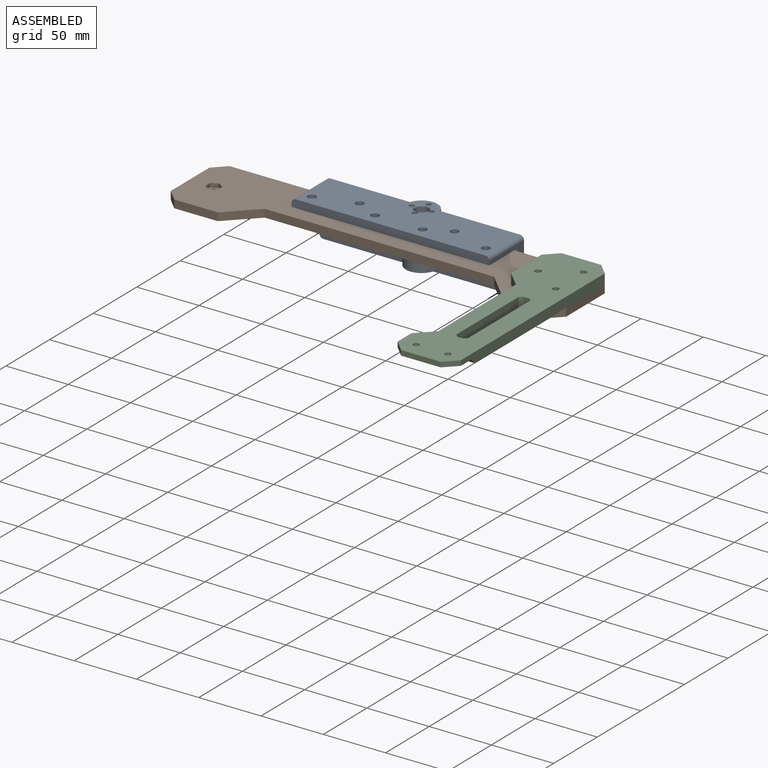
[diagram: assembled view]
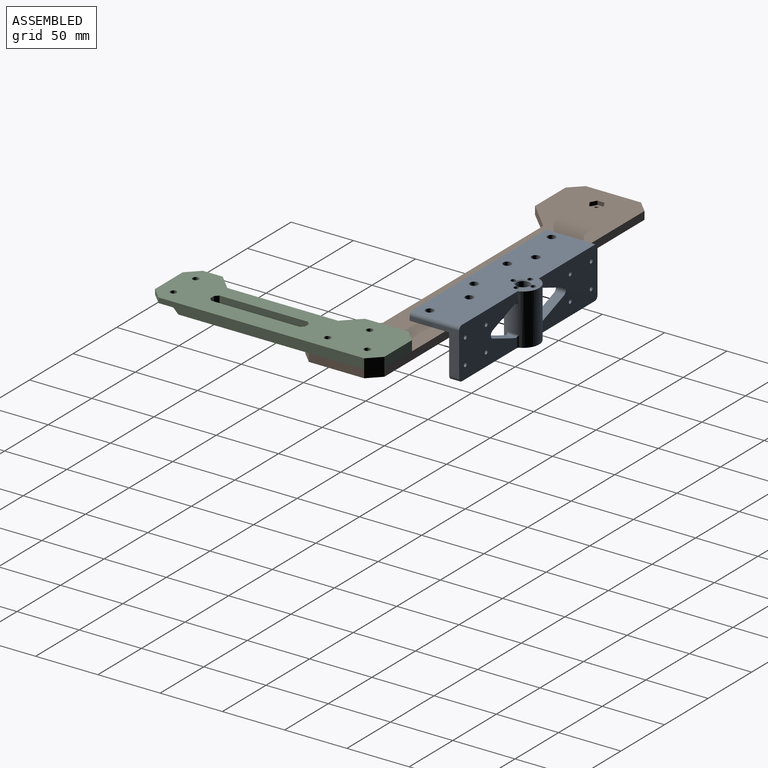
[diagram: assembled view, second angle]
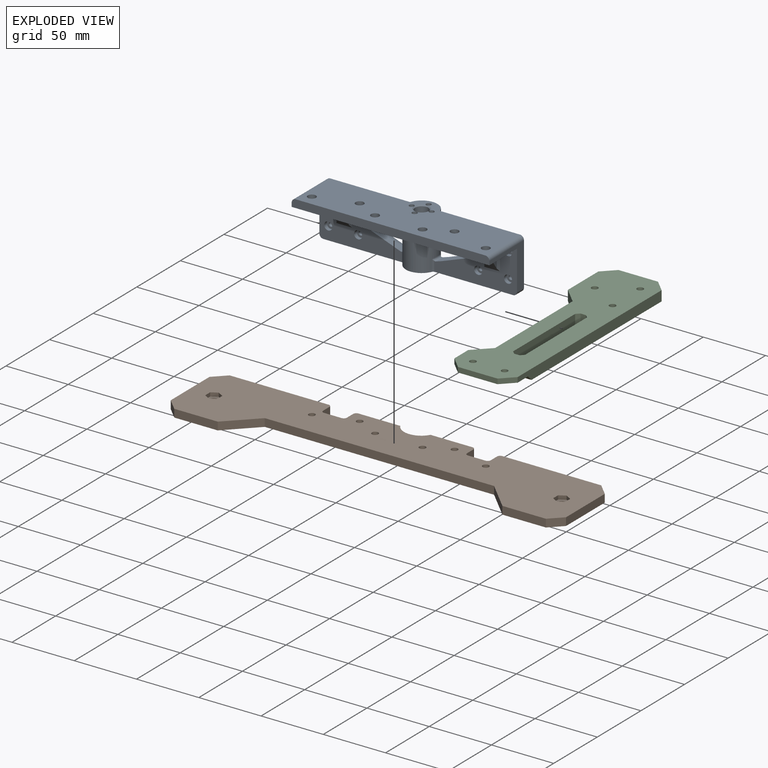
[diagram: exploded view]
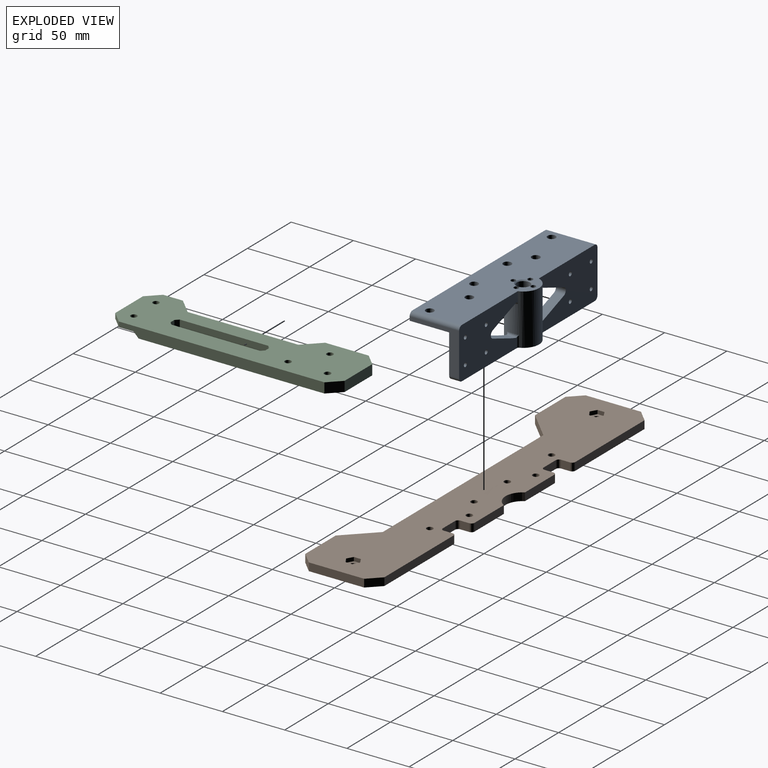
[diagram: exploded view, second angle]
ASSEMBLY  parts=3 mates=5
PART A: 103 faces, bbox 158.9x48.6x41 mm
  f0: plane 152.4x48.42mm, normal (0,0,1), area 5834.2mm2, adj f2,f3,f6,f8,f9,f10,f13,f24
  f1: plane 67.36x34.59mm, normal (0,-1,0), area 1592.5mm2, adj f6,f7,f16,f19,f20,f21,f22,f23
  f2: plane 67.37x40.95mm, normal (0,1,0), area 2219.1mm2, adj f0,f6,f11,f12,f13,f14,f15,f16
  f3: plane 67.36x40.95mm, normal (0,1,0), area 2221.3mm2, adj f0,f6,f16,f19,f20,f21,f22,f23
  f4: plane 66.27x32.06mm, normal (0,-1,0), area 1437.9mm2, adj f11,f12,f14,f15,f16,f17,f35,f38
  f5: cylinder r=5.33mm len=39.31mm, axis (0,0,-1), area 1317.3mm2, adj f93,f94
  f6: cylinder r=12.7mm len=40.89mm, axis (0,0,-1), area 2727.8mm2, adj f0,f1,f2,f3,f7,f16,f88,f95
  f7: plane 158.75x31.75mm, normal (0,0,-1), area 4351mm2, adj f1,f6,f14,f23,f32,f62,f66,f70
  f8: cylinder r=1.99mm len=6.35mm, axis (0,0,1), area 79.5mm2, adj f0,f60,f93
  f9: cylinder r=1.99mm len=6.35mm, axis (0,0,1), area 79.6mm2, adj f0,f61,f93
  f10: cylinder r=1.99mm len=6.35mm, axis (0,0,1), area 79.5mm2, adj f0,f18,f93
  f11: cylinder r=3.17mm len=7.94mm, axis (0,1,0), area 61.3mm2, adj f2,f4,f12,f17
  f12: plane 26.86x10.06mm, normal (0.35,0,-0.94), area 222.5mm2, adj f2,f4,f11,f88,f95
  f13: cylinder r=3.17mm len=39.69mm, axis (0,1,0), area 197.9mm2, adj f0,f2,f14,f32
  f14: plane 39.69x34.54mm, normal (-1,0,0), area 376.4mm2, adj f2,f4,f7,f13,f15,f32,f92
  f15: cylinder r=3.17mm len=7.94mm, axis (0,1,0), area 39.6mm2, adj f2,f4,f14,f16
  f16: plane 152.4x25.4mm, normal (0,0,-1), area 1351.4mm2, adj f1,f2,f3,f4,f6,f15,f22,f27
  f17: plane 26.6x9.87mm, normal (0.35,0,0.94), area 222mm2, adj f2,f4,f11,f98
  f18: plane 3.99x3.99mm, normal (0,0,1), area 12.5mm2, adj f10
  f19: plane 21.69x8.05mm, normal (-0.35,0,-0.94), area 183.7mm2, adj f1,f3,f20,f25
  f20: cylinder r=3.17mm len=7.94mm, axis (0,1,0), area 61.3mm2, adj f1,f3,f19,f21
  f21: plane 21.69x8.05mm, normal (-0.35,0,0.94), area 183.7mm2, adj f1,f3,f20,f31
  f22: cylinder r=3.17mm len=7.94mm, axis (0,1,0), area 39.6mm2, adj f1,f3,f16,f23
  f23: plane 39.69x34.54mm, normal (1,0,0), area 375mm2, adj f1,f3,f7,f22,f24,f32
  f24: cylinder r=3.17mm len=39.69mm, axis (0,1,0), area 197.9mm2, adj f0,f3,f23,f32
  f25: plane 7.94x4.98mm, normal (-0.3,0,-0.95), area 38.3mm2, adj f1,f3,f19,f99
  f26: plane 3.99x3.99mm, normal (0,0,-1), area 12.5mm2, adj f29
  f27: cylinder r=1.99mm len=6.35mm, axis (0,0,-1), area 79.5mm2, adj f16,f57,f94
  f28: cylinder r=1.99mm len=6.35mm, axis (0,0,-1), area 79.6mm2, adj f16,f58,f94
  f29: cylinder r=1.99mm len=6.35mm, axis (0,0,-1), area 79.6mm2, adj f16,f26,f94
  f30: cylinder r=1.99mm len=6.35mm, axis (0,0,-1), area 79.6mm2, adj f16,f59,f94
  f31: plane 7.94x4.98mm, normal (-0.3,0,0.95), area 38.3mm2, adj f1,f3,f21,f102
  f32: plane 158.75x6.35mm, normal (0,-1,0), area 1003.7mm2, adj f0,f7,f13,f14,f23,f24
  f33: cylinder r=1.65mm len=4.94mm, axis (0,-1,0), area 51.2mm2, adj f2,f34
  f34: plane 6.5x6.5mm, normal (0,-1,0), area 24.6mm2, adj f33,f35
  f35: cylinder r=3.25mm len=6.5mm, axis (0,-1,0), area 61.3mm2, adj f4,f34,f91
  f36: cylinder r=1.65mm len=4.94mm, axis (0,-1,0), area 51.2mm2, adj f2,f37
  f37: plane 6.5x6.5mm, normal (0,-1,0), area 24.6mm2, adj f36,f38
  f38: cylinder r=3.25mm len=6.5mm, axis (0,-1,0), area 61.3mm2, adj f4,f37,f89
  f39: cylinder r=1.65mm len=4.94mm, axis (0,-1,0), area 51.2mm2, adj f2,f40
  f40: plane 6.5x6.5mm, normal (0,-1,0), area 24.6mm2, adj f39,f41
  f41: cylinder r=3.25mm len=6.5mm, axis (0,-1,0), area 61.3mm2, adj f4,f40
  f42: cylinder r=1.65mm len=4.94mm, axis (0,-1,0), area 51.2mm2, adj f2,f43
  f43: plane 6.5x6.5mm, normal (0,-1,0), area 24.6mm2, adj f42,f44
  f44: cylinder r=3.25mm len=6.5mm, axis (0,-1,0), area 61.3mm2, adj f4,f43
  f45: cylinder r=1.65mm len=4.94mm, axis (0,-1,0), area 51.2mm2, adj f3,f46
  f46: plane 6.5x6.5mm, normal (0,-1,0), area 24.6mm2, adj f45,f47
  f47: cylinder r=3.25mm len=6.5mm, axis (0,-1,0), area 61.3mm2, adj f1,f46
  f48: cylinder r=1.65mm len=4.94mm, axis (0,-1,0), area 51.2mm2, adj f3,f49
  f49: plane 6.5x6.5mm, normal (0,-1,0), area 24.6mm2, adj f48,f50
  f50: cylinder r=3.25mm len=6.5mm, axis (0,-1,0), area 61.3mm2, adj f1,f49
  f51: cylinder r=1.65mm len=4.94mm, axis (0,-1,0), area 51.2mm2, adj f3,f52
  f52: plane 6.5x6.5mm, normal (0,-1,0), area 24.6mm2, adj f51,f53
  f53: cylinder r=3.25mm len=6.5mm, axis (0,-1,0), area 61.3mm2, adj f1,f52
  f54: cylinder r=1.65mm len=4.94mm, axis (0,-1,0), area 51.2mm2, adj f3,f55
  f55: plane 6.5x6.5mm, normal (0,-1,0), area 24.6mm2, adj f54,f56
  f56: cylinder r=3.25mm len=6.5mm, axis (0,-1,0), area 61.3mm2, adj f1,f55
  f57: plane 3.99x3.99mm, normal (0,0,-1), area 12.5mm2, adj f27
  f58: plane 3.99x3.99mm, normal (0,0,-1), area 12.5mm2, adj f28
  f59: plane 3.99x3.99mm, normal (0,0,-1), area 12.5mm2, adj f30
  f60: plane 3.99x3.99mm, normal (0,0,1), area 12.5mm2, adj f8
  f61: plane 3.99x3.99mm, normal (0,0,1), area 12.5mm2, adj f9
  f62: plane 12.56x11.78mm, normal (0,0.82,0.57), area 143.4mm2, adj f1,f7,f63,f64,f78,f79,f85,f87
  f63: plane 16.45x11.39mm, normal (1,0,0), area 71mm2, adj f62,f65,f79,f85
  f64: plane 16.45x11.39mm, normal (-1,0,0), area 71mm2, adj f62,f65,f78,f87
  f65: plane 19.5x13.5mm, normal (0,-0.82,-0.57), area 230.8mm2, adj f1,f63,f64,f78,f79,f85,f86,f87
  f66: plane 12.56x11.78mm, normal (0,0.82,0.57), area 143.4mm2, adj f4,f7,f67,f68,f80,f81,f82,f84
  f67: plane 16.45x11.39mm, normal (-1,0,0), area 71mm2, adj f66,f69,f80,f84
  f68: plane 16.45x11.39mm, normal (1,0,0), area 71mm2, adj f66,f69,f81,f82
  f69: plane 19.5x13.5mm, normal (0,-0.82,-0.57), area 230.8mm2, adj f4,f67,f68,f80,f81,f82,f83,f84
  f70: cylinder r=3.26mm len=6.53mm, axis (0,0,1), area 130.2mm2, adj f0,f7
  f71: cylinder r=3.26mm len=6.53mm, axis (0,0,1), area 130.2mm2, adj f0,f7
  f72: cylinder r=3.26mm len=6.53mm, axis (0,0,1), area 130.2mm2, adj f0,f7
  f73: cylinder r=3.26mm len=6.53mm, axis (0,0,1), area 130.2mm2, adj f0,f7
  f74: cylinder r=3.26mm len=6.53mm, axis (0,0,1), area 130.2mm2, adj f0,f7
  f75: cylinder r=3.26mm len=6.53mm, axis (0,0,1), area 130.2mm2, adj f0,f7
  f76: cylinder r=1.99mm len=6.35mm, axis (0,0,1), area 79.6mm2, adj f0,f77,f93
  f77: plane 3.99x3.99mm, normal (0,0,1), area 12.5mm2, adj f76
  f78: plane 10.55x1.52mm, normal (-0.71,-0.71,0), area 17.9mm2, adj f1,f62,f64,f65
  f79: plane 10.55x1.52mm, normal (0.71,-0.71,0), area 17.9mm2, adj f1,f62,f63,f65
  f80: plane 10.55x1.52mm, normal (-0.71,-0.71,0), area 17.9mm2, adj f4,f66,f67,f69
  f81: plane 10.55x1.52mm, normal (0.71,-0.71,0), area 17.9mm2, adj f4,f66,f68,f69
  f82: plane 7.64x1.52mm, normal (0.71,0,-0.71), area 12.8mm2, adj f7,f66,f68,f69,f83
  f83: plane 12.56x1.25mm, normal (0,-0.46,-0.89), area 16.7mm2, adj f7,f69,f82,f84
  f84: plane 7.64x1.52mm, normal (-0.71,0,-0.71), area 12.8mm2, adj f7,f66,f67,f69,f83
  f85: plane 7.64x1.52mm, normal (0.71,0,-0.71), area 12.8mm2, adj f7,f62,f63,f65,f86
  f86: plane 12.56x1.25mm, normal (0,-0.46,-0.89), area 16.7mm2, adj f7,f65,f85,f87
  f87: plane 7.64x1.52mm, normal (-0.71,0,-0.71), area 12.8mm2, adj f7,f62,f64,f65,f86
  f88: cylinder r=2.54mm len=34.44mm, axis (1,0,0), area 130mm2, adj f4,f6,f7,f12,f89,f95
  f89: bspline ~5.71x2.54mm, area 15.9mm2, adj f7,f38,f88,f90
  f90: cylinder r=2.54mm len=18.29mm, axis (1,0,0), area 73mm2, adj f4,f7,f89,f91
  f91: bspline ~5.71x2.54mm, area 15.9mm2, adj f7,f35,f90,f92
  f92: cylinder r=2.54mm len=4.32mm, axis (1,0,0), area 17.2mm2, adj f4,f7,f14,f91
  f93: cone r=5.33mm half-angle=45deg, axis (0,0,1), area 40.2mm2, adj f0,f5,f8,f9,f10,f76
  f94: cone r=6.13mm half-angle=45deg, axis (0,0,-1), area 40.3mm2, adj f5,f16,f27,f28,f29,f30
  f95: bspline ~9.23x2.86mm, area 25.5mm2, adj f2,f6,f12,f88
  f96: cylinder r=1.59mm len=8.88mm, axis (0,0,-1), area 15.3mm2, adj f4,f6,f16,f98
  f97: cylinder r=1.59mm len=8.88mm, axis (0,0,-1), area 15.3mm2, adj f2,f6,f16,f98
  f98: bspline ~11.11x3.14mm, area 26.3mm2, adj f2,f4,f6,f17,f96,f97
  f99: bspline ~8.98x2.71mm, area 24mm2, adj f1,f3,f6,f25
  f100: cylinder r=1.59mm len=9.17mm, axis (0,0,-1), area 15.8mm2, adj f1,f6,f16,f102
  f101: cylinder r=1.59mm len=9.17mm, axis (0,0,-1), area 15.8mm2, adj f3,f6,f16,f102
  f102: bspline ~11.11x3.07mm, area 25.7mm2, adj f1,f3,f6,f31,f100,f101
PART B: 76 faces, bbox 317.5x63.5x12.7 mm
  f0: plane 34.93x6.35mm, normal (0,1,0), area 221.8mm2, adj f1,f5,f72,f75
  f1: plane 317.5x63.5mm, normal (0,0,1), area 13916.2mm2, adj f0,f7,f8,f9,f10,f11,f12,f13
  f2: plane 9.53x9.53mm, normal (0,0,1), area 51mm2, adj f3,f65
  f3: cylinder r=2.54mm len=5.08mm, axis (0,0,1), area 52.7mm2, adj f2,f64
  f4: plane 9.53x9.53mm, normal (0,0,1), area 51mm2, adj f6,f40
  f5: plane 317.5x63.5mm, normal (0,0,-1), area 14517.2mm2, adj f0,f7,f8,f9,f10,f11,f12,f13
  f6: cylinder r=2.54mm len=5.08mm, axis (0,0,1), area 52.7mm2, adj f4,f33
  f7: plane 33.55x6.35mm, normal (0,-1,0), area 213mm2, adj f1,f5,f20,f45
  f8: plane 79.38x6.35mm, normal (0,-1,0), area 504mm2, adj f1,f5,f47,f71
  f9: plane 33.55x6.35mm, normal (0,-1,0), area 213mm2, adj f1,f5,f20,f46
  f10: plane 34.93x6.35mm, normal (0,1,0), area 221.8mm2, adj f1,f5,f69,f73
  f11: plane 44.45x6.35mm, normal (-1,0,0), area 282.3mm2, adj f1,f5,f71,f72
  f12: plane 79.38x6.35mm, normal (0,-1,0), area 504mm2, adj f1,f5,f44,f70
  f13: plane 44.45x6.35mm, normal (1,0,0), area 282.3mm2, adj f1,f5,f69,f70
  f14: cylinder r=2.55mm len=6.35mm, axis (0,0,1), area 101.8mm2, adj f1,f5
  f15: cylinder r=2.55mm len=6.35mm, axis (0,0,1), area 101.8mm2, adj f1,f5
  f16: cylinder r=2.55mm len=6.35mm, axis (0,0,1), area 101.8mm2, adj f1,f5
  f17: cylinder r=2.55mm len=6.35mm, axis (0,0,1), area 101.8mm2, adj f1,f5
  f18: cylinder r=2.55mm len=6.35mm, axis (0,0,1), area 101.8mm2, adj f1,f5
  f19: cylinder r=2.55mm len=6.35mm, axis (0,0,1), area 101.8mm2, adj f1,f5
  f20: cylinder r=13.97mm len=24.34mm, axis (0,0,1), area 187.6mm2, adj f1,f5,f7,f9
  f21: plane 7.11x6.35mm, normal (-1,0,0), area 45.2mm2, adj f1,f5,f46,f50
  f22: plane 13.97x6.35mm, normal (0,-1,0), area 88.7mm2, adj f1,f5,f50,f51
  f23: plane 7.11x6.35mm, normal (1,0,0), area 45.2mm2, adj f1,f5,f47,f51
  f24: plane 7.11x6.35mm, normal (-1,0,0), area 45.2mm2, adj f1,f5,f44,f49
  f25: plane 13.97x6.35mm, normal (0,-1,0), area 88.7mm2, adj f1,f5,f48,f49
  f26: plane 7.11x6.35mm, normal (1,0,0), area 45.2mm2, adj f1,f5,f45,f48
  f27: cylinder r=2.02mm len=5.72mm, axis (0,0,1), area 72.5mm2, adj f1,f28
  f28: plane 4.04x4.04mm, normal (0,0,1), area 12.8mm2, adj f27
  f29: cylinder r=2.02mm len=5.72mm, axis (0,0,1), area 72.5mm2, adj f1,f30
  f30: plane 4.04x4.04mm, normal (0,0,1), area 12.8mm2, adj f29
  f31: cylinder r=2.02mm len=5.72mm, axis (0,0,1), area 72.5mm2, adj f1,f32
  f32: plane 4.04x4.04mm, normal (0,0,1), area 12.8mm2, adj f31
  f33: plane 11.29x9.78mm, normal (0,0,-1), area 62.5mm2, adj f6,f34,f35,f36,f37,f38,f39
  f34: plane 4.89x3.05mm, normal (0.5,-0.87,0), area 17.2mm2, adj f5,f33,f35,f39
  f35: plane 4.89x3.05mm, normal (-0.5,-0.87,0), area 17.2mm2, adj f5,f33,f34,f36
  f36: plane 5.65x3.05mm, normal (-1,0,0), area 17.2mm2, adj f5,f33,f35,f37
  f37: plane 4.89x3.05mm, normal (-0.5,0.87,0), area 17.2mm2, adj f5,f33,f36,f38
  f38: plane 4.89x3.05mm, normal (0.5,0.87,0), area 17.2mm2, adj f5,f33,f37,f39
  f39: plane 5.65x3.05mm, normal (1,0,0), area 17.2mm2, adj f5,f33,f34,f38
  f40: cylinder r=4.76mm len=9.53mm, axis (0,0,-1), area 190mm2, adj f4,f42
  f41: cylinder r=7.94mm len=15.88mm, axis (0,0,-1), area 190mm2, adj f42,f43
  f42: plane 15.88x15.88mm, normal (0,0,1), area 126.7mm2, adj f40,f41
  f43: cone r=7.94mm half-angle=45deg, axis (0,0,-1), area 207.8mm2, adj f1,f41
  f44: cylinder r=2.54mm len=6.35mm, axis (0,0,-1), area 25.3mm2, adj f1,f5,f12,f24
  f45: cylinder r=2.54mm len=6.35mm, axis (0,0,1), area 25.3mm2, adj f1,f5,f7,f26
  f46: cylinder r=2.54mm len=6.35mm, axis (0,0,-1), area 25.3mm2, adj f1,f5,f9,f21
  f47: cylinder r=2.54mm len=6.35mm, axis (0,0,1), area 25.3mm2, adj f1,f5,f8,f23
  f48: cylinder r=2.54mm len=6.35mm, axis (0,0,1), area 25.3mm2, adj f1,f5,f25,f26
  f49: cylinder r=2.54mm len=6.35mm, axis (0,0,-1), area 25.3mm2, adj f1,f5,f24,f25
  f50: cylinder r=2.54mm len=6.35mm, axis (0,0,1), area 25.3mm2, adj f1,f5,f21,f22
  f51: cylinder r=2.54mm len=6.35mm, axis (0,0,-1), area 25.3mm2, adj f1,f5,f22,f23
  f52: cylinder r=2.02mm len=5.72mm, axis (0,0,1), area 72.5mm2, adj f1,f53
  f53: plane 4.04x4.04mm, normal (0,0,1), area 12.8mm2, adj f52
  f54: cylinder r=2.02mm len=5.72mm, axis (0,0,1), area 72.5mm2, adj f1,f55
  f55: plane 4.04x4.04mm, normal (0,0,1), area 12.8mm2, adj f54
  f56: cylinder r=2.02mm len=5.72mm, axis (0,0,1), area 72.5mm2, adj f1,f57
  f57: plane 4.04x4.04mm, normal (0,0,1), area 12.8mm2, adj f56
  f58: plane 4.89x3.05mm, normal (-0.5,-0.87,0), area 17.2mm2, adj f5,f59,f63,f64
  f59: plane 5.65x3.05mm, normal (-1,0,0), area 17.2mm2, adj f5,f58,f60,f64
  f60: plane 4.89x3.05mm, normal (-0.5,0.87,0), area 17.2mm2, adj f5,f59,f61,f64
  f61: plane 4.89x3.05mm, normal (0.5,0.87,0), area 17.2mm2, adj f5,f60,f62,f64
  f62: plane 5.65x3.05mm, normal (1,0,0), area 17.2mm2, adj f5,f61,f63,f64
  f63: plane 4.89x3.05mm, normal (0.5,-0.87,0), area 17.2mm2, adj f5,f58,f62,f64
  f64: plane 11.29x9.78mm, normal (0,0,-1), area 62.5mm2, adj f3,f58,f59,f60,f61,f62,f63
  f65: cylinder r=4.76mm len=9.53mm, axis (0,0,-1), area 190mm2, adj f2,f67
  f66: cylinder r=7.94mm len=15.88mm, axis (0,0,-1), area 190mm2, adj f67,f68
  f67: plane 15.88x15.88mm, normal (0,0,1), area 126.7mm2, adj f65,f66
  f68: cone r=10.48mm half-angle=45deg, axis (0,0,-1), area 207.8mm2, adj f1,f66
  f69: plane 9.53x9.53mm, normal (0.71,0.71,0), area 85.5mm2, adj f1,f5,f10,f13
  f70: plane 9.53x9.53mm, normal (0.71,-0.71,0), area 85.5mm2, adj f1,f5,f12,f13
  f71: plane 9.53x9.53mm, normal (-0.71,-0.71,0), area 85.5mm2, adj f1,f5,f8,f11
  f72: plane 9.53x9.53mm, normal (-0.71,0.71,0), area 85.5mm2, adj f0,f1,f5,f11
  f73: plane 22.23x22.23mm, normal (-0.71,0.71,0), area 199.6mm2, adj f1,f5,f10,f74
  f74: plane 184.15x6.35mm, normal (0,1,0), area 1169.4mm2, adj f1,f5,f73,f75
  f75: plane 22.23x22.23mm, normal (0.71,0.71,0), area 199.6mm2, adj f0,f1,f5,f74
PART C: 29 faces, bbox 184.2x50.8x8.1 mm
  f0: plane 15.88x8.13mm, normal (0,1,0), area 72.8mm2, adj f8,f17,f19,f27,f28
  f1: plane 31.75x4.06mm, normal (1,0,0), area 129mm2, adj f8,f19,f20,f27
  f2: cylinder r=2.49mm len=4.98mm, axis (0,0,1), area 63.6mm2, adj f8,f27
  f3: cylinder r=2.49mm len=4.98mm, axis (0,0,1), area 63.6mm2, adj f8,f27
  f4: plane 34.93x8.13mm, normal (0,1,0), area 283.9mm2, adj f7,f8,f18,f21
  f5: plane 31.75x8.13mm, normal (-1,0,0), area 258.1mm2, adj f7,f8,f21,f22
  f6: plane 165.1x8.13mm, normal (0,-1,0), area 1285.7mm2, adj f7,f8,f20,f22,f27,f28
  f7: plane 158.75x50.8mm, normal (0,0,1), area 5909.1mm2, adj f4,f5,f6,f9,f10,f11,f12,f13
  f8: plane 184.15x50.8mm, normal (0,0,-1), area 7069.8mm2, adj f0,f1,f2,f3,f4,f5,f6,f9
  f9: cylinder r=2.55mm len=8.13mm, axis (0,0,1), area 130.4mm2, adj f7,f8
  f10: cylinder r=2.55mm len=8.13mm, axis (0,0,1), area 130.4mm2, adj f7,f8
  f11: cylinder r=2.55mm len=8.13mm, axis (0,0,1), area 130.4mm2, adj f7,f8
  f12: plane 8.13x4.45mm, normal (1,0,0), area 36.1mm2, adj f7,f8,f25,f26
  f13: plane 71.12x8.13mm, normal (0,1,0), area 578.1mm2, adj f7,f8,f23,f25
  f14: plane 8.13x4.45mm, normal (-1,0,0), area 36.1mm2, adj f7,f8,f23,f24
  f15: plane 71.12x8.13mm, normal (0,-1,0), area 578.1mm2, adj f7,f8,f24,f26
  f16: plane 88.9x8.13mm, normal (0,1,0), area 722.6mm2, adj f7,f8,f17,f18
  f17: plane 12.7x12.7mm, normal (-0.71,0.71,0), area 146mm2, adj f0,f7,f8,f16
  f18: plane 12.7x12.7mm, normal (0.71,0.71,0), area 146mm2, adj f4,f7,f8,f16
  f19: plane 9.53x9.53mm, normal (0.71,0.71,0), area 54.7mm2, adj f0,f1,f8,f27
  f20: plane 9.53x9.53mm, normal (0.71,-0.71,0), area 54.7mm2, adj f1,f6,f8,f27
  f21: plane 9.53x9.53mm, normal (-0.71,0.71,0), area 109.5mm2, adj f4,f5,f7,f8
  f22: plane 9.53x9.53mm, normal (-0.71,-0.71,0), area 109.5mm2, adj f5,f6,f7,f8
  f23: plane 8.13x2.54mm, normal (-0.71,0.71,0), area 29.2mm2, adj f7,f8,f13,f14
  f24: plane 8.13x2.54mm, normal (-0.71,-0.71,0), area 29.2mm2, adj f7,f8,f14,f15
  f25: plane 8.13x2.54mm, normal (0.71,0.71,0), area 29.2mm2, adj f7,f8,f12,f13
  f26: plane 8.13x2.54mm, normal (0.71,-0.71,0), area 29.2mm2, adj f7,f8,f12,f15
  f27: plane 50.8x21.34mm, normal (0,0,1), area 954.2mm2, adj f0,f1,f2,f3,f6,f19,f20,f28
  f28: plane 50.8x4.06mm, normal (0.71,0,0.71), area 292mm2, adj f0,f6,f7,f27
PLACE A t=(0.84,-152.77,19.54)mm
PLACE B rot(axis=(1,0,0),180deg) t=(0.84,-191.66,19.54)mm
PLACE C rot(axis=(0.71,-0.71,0),180deg) t=(134.19,-251.98,27.66)mm
MATE planar A.f7 <-> B.f5  axis (0,0,-1) through (2.6,-173.63,19.54)mm
MATE cylindrical B.f15 <-> A.f70  axis (0,0,-1) through (-69.01,-178.96,13.19)mm
MATE parallel C.f6 <-> B.f13  axis (1,0,0) through (159.59,-248.68,23.69)mm
MATE planar C.f7 <-> B.f5  axis (0,0,-1) through (121.49,-217.06,19.54)mm
MATE cylindrical C.f9 <-> B.f52  axis (0,0,-1) through (121.49,-191.66,23.6)mm
